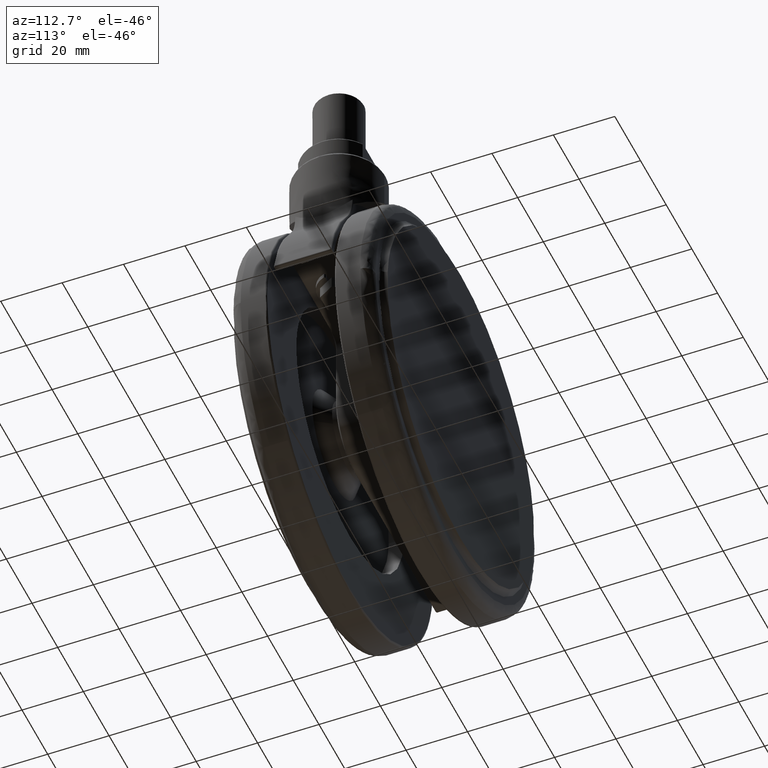
[diagram: clean part render]
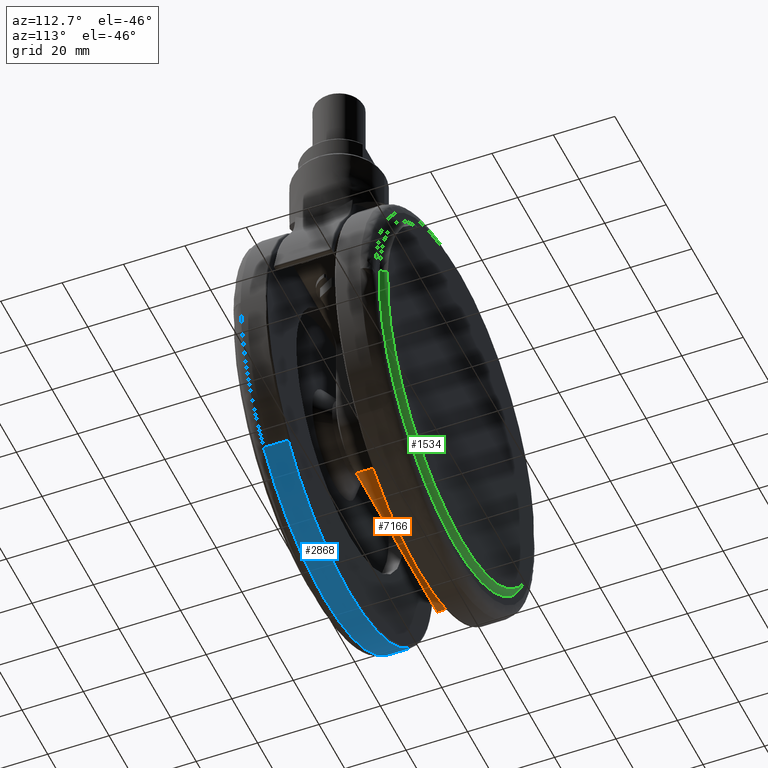
[diagram: same view with three faces highlighted in distinct colors, each labeled with its STEP entity id]
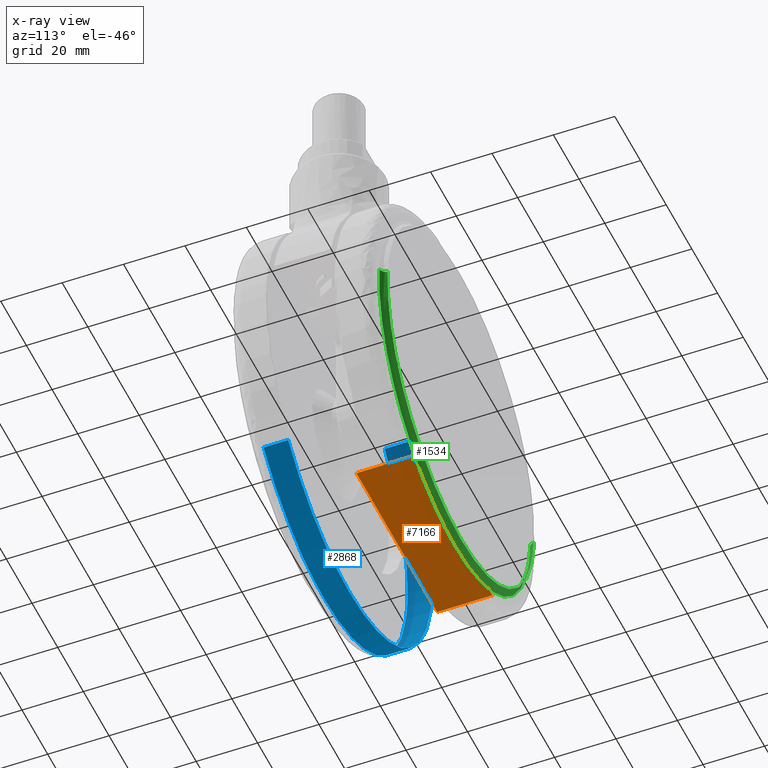
[diagram: x-ray of the same camera — body ghosted, the three highlighted faces saturated]
A machine part, auxiliary view with three faces highlighted in distinct colors.
The next image is the same camera in x-ray (body ghosted, the three faces saturated) — at least one of them is partly hidden behind the body in this view.
Their STEP definitions:

[orange] entity #7166 — the highlighted face is a freeform B-spline surface patch.
#7092=CARTESIAN_POINT('',(-35.0,9.0,-86.500000000000000));
#7093=VERTEX_POINT('',#7092);
#7094=CARTESIAN_POINT('',(-35.0,-8.999999999999789,-86.500000000000000));
#7095=VERTEX_POINT('',#7094);
#7096=CARTESIAN_POINT('',(-35.0,9.0,-86.500000000000000));
#7097=CARTESIAN_POINT('',(-35.0,-8.999999999999789,-86.500000000000000));
#7098=QUASI_UNIFORM_CURVE('',1,(#7096,#7097),.UNSPECIFIED.,.F.,.U.);
#7099=EDGE_CURVE('',#7093,#7095,#7098,.T.);
#7139=CARTESIAN_POINT('',(-31.860691300591970,-9.899099965112294,-86.500000000000000));
#7140=CARTESIAN_POINT('',(-100.988335835032800,-9.899099965112294,-86.500000000000000));
#7141=CARTESIAN_POINT('',(-31.860691300591970,9.899100447910119,-86.500000000000000));
#7142=CARTESIAN_POINT('',(-100.988335835032800,9.899100447910119,-86.500000000000000));
#7143=B_SPLINE_SURFACE_WITH_KNOTS('',1,1,((#7139,#7141),(#7140,#7142)),.UNSPECIFIED.,.F.,.F.,.U.,(2,2),(2,2),(0.0,69.127644534440805),(0.0,19.798200413022411),.UNSPECIFIED.);
#7144=CARTESIAN_POINT('',(-97.849025449882504,-8.999999999999799,-86.500000000000000));
#7145=VERTEX_POINT('',#7144);
#7146=CARTESIAN_POINT('',(-97.849025449882504,9.0,-86.500000000000000));
#7147=VERTEX_POINT('',#7146);
#7148=CARTESIAN_POINT('',(-97.849025449882504,-8.999999999999799,-86.500000000000000));
#7149=CARTESIAN_POINT('',(-97.849025449882504,9.0,-86.500000000000000));
#7150=QUASI_UNIFORM_CURVE('',1,(#7148,#7149),.UNSPECIFIED.,.F.,.U.);
#7151=EDGE_CURVE('',#7145,#7147,#7150,.T.);
#7152=ORIENTED_EDGE('',*,*,#7151,.T.);
#7153=CARTESIAN_POINT('',(-97.849025449882504,9.0,-86.500000000000000));
#7154=CARTESIAN_POINT('',(-35.0,9.0,-86.500000000000000));
#7155=QUASI_UNIFORM_CURVE('',1,(#7153,#7154),.UNSPECIFIED.,.F.,.U.);
#7156=EDGE_CURVE('',#7147,#7093,#7155,.T.);
#7157=ORIENTED_EDGE('',*,*,#7156,.T.);
#7158=ORIENTED_EDGE('',*,*,#7099,.T.);
#7159=CARTESIAN_POINT('',(-35.0,-8.999999999999789,-86.500000000000000));
#7160=CARTESIAN_POINT('',(-97.849025449882504,-8.999999999999799,-86.500000000000000));
#7161=QUASI_UNIFORM_CURVE('',1,(#7159,#7160),.UNSPECIFIED.,.F.,.U.);
#7162=EDGE_CURVE('',#7095,#7145,#7161,.T.);
#7163=ORIENTED_EDGE('',*,*,#7162,.T.);
#7164=EDGE_LOOP('',(#7152,#7157,#7158,#7163));
#7165=FACE_OUTER_BOUND('',#7164,.T.);
#7166=ADVANCED_FACE('',(#7165),#7143,.T.);

[blue] entity #2868 — the highlighted face is a freeform B-spline surface patch.
#2562=CARTESIAN_POINT('',(12.149334331554080,-11.499999998140650,-116.243047192735300));
#2563=VERTEX_POINT('',#2562);
#2579=CARTESIAN_POINT('',(-35.0,-11.500000000000000,-136.500000000000000));
#2580=VERTEX_POINT('',#2579);
#2581=CARTESIAN_POINT('',(12.149334331554087,-11.499999998140645,-116.243047192735280));
#2582=CARTESIAN_POINT('',(-7.073795926509572,-11.499999999232593,-136.499999999999970));
#2583=CARTESIAN_POINT('',(-35.0,-11.500000000000000,-136.500000000000000));
#2591=(BOUNDED_CURVE()B_SPLINE_CURVE(2,(#2581,#2582,#2583),.UNSPECIFIED.,.F.,.U.)B_SPLINE_CURVE_WITH_KNOTS((3,3),(0.371049525931352,0.500000000000000),.UNSPECIFIED.)CURVE()GEOMETRIC_REPRESENTATION_ITEM()RATIONAL_B_SPLINE_CURVE((0.853699661423327,0.848925122330052,1.0))REPRESENTATION_ITEM(''));
#2592=EDGE_CURVE('',#2563,#2580,#2591,.T.);
#2594=CARTESIAN_POINT('',(-99.994867873247927,-11.499999996382440,-72.316792592427134));
#2595=VERTEX_POINT('',#2594);
#2596=CARTESIAN_POINT('',(-35.0,-11.500000000000000,-136.500000000000000));
#2597=CARTESIAN_POINT('',(-99.188275443966333,-11.499999998191219,-136.500000000000000));
#2598=CARTESIAN_POINT('',(-99.994867873247927,-11.499999996382433,-72.316792592427134));
#2606=(BOUNDED_CURVE()B_SPLINE_CURVE(2,(#2596,#2597,#2598),.UNSPECIFIED.,.F.,.U.)B_SPLINE_CURVE_WITH_KNOTS((3,3),(0.500000000000000,0.747784295921703),.UNSPECIFIED.)CURVE()GEOMETRIC_REPRESENTATION_ITEM()RATIONAL_B_SPLINE_CURVE((1.0,0.709702639984269,0.994854295643955))REPRESENTATION_ITEM(''));
#2607=EDGE_CURVE('',#2580,#2595,#2606,.T.);
#2682=CARTESIAN_POINT('',(-82.149334331554087,-11.499999998140639,-26.756952807264732));
#2683=VERTEX_POINT('',#2682);
#2684=CARTESIAN_POINT('',(-99.994867873247927,-11.499999996382433,-72.316792592427134));
#2685=CARTESIAN_POINT('',(-100.000000000000010,-11.499999996393658,-71.908412419477457));
#2686=CARTESIAN_POINT('',(-100.0,-11.499999996405030,-71.500000000000014));
#2687=CARTESIAN_POINT('',(-100.0,-11.499999997126656,-45.567629693371082));
#2688=CARTESIAN_POINT('',(-82.149334331554073,-11.499999998140645,-26.756952807264724));
#2696=(BOUNDED_CURVE()B_SPLINE_CURVE(2,(#2684,#2685,#2686,#2687,#2688),.UNSPECIFIED.,.F.,.U.)B_SPLINE_CURVE_WITH_KNOTS((3,2,3),(0.747784295921703,0.750000000000000,0.871049525931352),.UNSPECIFIED.)CURVE()GEOMETRIC_REPRESENTATION_ITEM()RATIONAL_B_SPLINE_CURVE((0.994854295643955,0.997404141202278,1.0,0.858181658856495,0.853699661423327))REPRESENTATION_ITEM(''));
#2697=EDGE_CURVE('',#2595,#2683,#2696,.T.);
#2733=CARTESIAN_POINT('',(-82.149334334185141,-19.500000000176971,-26.756952810037280));
#2734=VERTEX_POINT('',#2733);
#2765=CARTESIAN_POINT('',(12.149334334185131,-19.500000000176971,-116.243047189962700));
#2766=VERTEX_POINT('',#2765);
#2782=CARTESIAN_POINT('',(12.149334334185131,-19.500000000176971,-116.243047189962700));
#2783=CARTESIAN_POINT('',(12.149334331554080,-11.499999998140650,-116.243047192735300));
#2784=QUASI_UNIFORM_CURVE('',1,(#2782,#2783),.UNSPECIFIED.,.F.,.U.);
#2785=EDGE_CURVE('',#2766,#2563,#2784,.T.);
#2790=CARTESIAN_POINT('',(-82.149334334185141,-19.500000000176971,-26.756952810037280));
#2791=CARTESIAN_POINT('',(-82.149334331554087,-11.499999998140639,-26.756952807264732));
#2792=QUASI_UNIFORM_CURVE('',1,(#2790,#2791),.UNSPECIFIED.,.F.,.U.);
#2793=EDGE_CURVE('',#2734,#2683,#2792,.T.);
#2798=CARTESIAN_POINT('',(12.149334115798689,-19.700000000443360,-116.243047420094000));
#2799=CARTESIAN_POINT('',(-32.593713304295314,-19.700000000443360,-163.392381535892750));
#2800=CARTESIAN_POINT('',(-79.743047420094001,-19.700000000443360,-118.649334115798690));
#2801=CARTESIAN_POINT('',(-126.892381535892680,-19.700000000443360,-73.906286695704694));
#2802=CARTESIAN_POINT('',(-82.149334115798695,-19.700000000443360,-26.756952579905999));
#2803=CARTESIAN_POINT('',(12.149334115798689,-11.294999996280909,-116.243047420094000));
#2804=CARTESIAN_POINT('',(-32.593713304295314,-11.294999996280913,-163.392381535892750));
#2805=CARTESIAN_POINT('',(-79.743047420094001,-11.294999996280909,-118.649334115798690));
#2806=CARTESIAN_POINT('',(-126.892381535892680,-11.294999996280913,-73.906286695704694));
#2807=CARTESIAN_POINT('',(-82.149334115798695,-11.294999996280909,-26.756952579905999));
#2815=(BOUNDED_SURFACE()B_SPLINE_SURFACE(2,1,((#2798,#2803),(#2799,#2804),(#2800,#2805),(#2801,#2806),(#2802,#2807)),.UNSPECIFIED.,.F.,.F.,.U.)B_SPLINE_SURFACE_WITH_KNOTS((3,2,3),(2,2),(0.0,107.695526217004700,215.391052434009400),(0.0,8.405000004162442),.UNSPECIFIED.)GEOMETRIC_REPRESENTATION_ITEM()RATIONAL_B_SPLINE_SURFACE(((1.0,1.0),(0.707106781186548,0.707106781186548),(1.0,1.0),(0.707106781186548,0.707106781186548),(1.0,1.0)))REPRESENTATION_ITEM('')SURFACE());
#2816=CARTESIAN_POINT('',(-99.994867873247927,-19.500000000344311,-72.316792592427120));
#2817=VERTEX_POINT('',#2816);
#2818=CARTESIAN_POINT('',(-99.994867873247927,-19.500000000344311,-72.316792592427120));
#2819=CARTESIAN_POINT('',(-100.000000000000010,-19.500000000343245,-71.908412419477443));
#2820=CARTESIAN_POINT('',(-100.0,-19.500000000342169,-71.500000000000000));
#2821=CARTESIAN_POINT('',(-100.0,-19.500000000273477,-45.567629695586383));
#2822=CARTESIAN_POINT('',(-82.149334334185127,-19.500000000176971,-26.756952810037284));
#2830=(BOUNDED_CURVE()B_SPLINE_CURVE(2,(#2818,#2819,#2820,#2821,#2822),.UNSPECIFIED.,.F.,.U.)B_SPLINE_CURVE_WITH_KNOTS((3,2,3),(0.747784295921703,0.750000000000000,0.871049525922478),.UNSPECIFIED.)CURVE()GEOMETRIC_REPRESENTATION_ITEM()RATIONAL_B_SPLINE_CURVE((0.994854295643955,0.997404141202278,1.0,0.858181658866892,0.853699661423984))REPRESENTATION_ITEM(''));
#2831=EDGE_CURVE('',#2817,#2734,#2830,.T.);
#2832=ORIENTED_EDGE('',*,*,#2831,.T.);
#2833=ORIENTED_EDGE('',*,*,#2793,.T.);
#2834=ORIENTED_EDGE('',*,*,#2697,.F.);
#2835=ORIENTED_EDGE('',*,*,#2607,.F.);
#2836=ORIENTED_EDGE('',*,*,#2592,.F.);
#2837=ORIENTED_EDGE('',*,*,#2785,.F.);
#2838=CARTESIAN_POINT('',(-35.0,-19.500000000000000,-136.500000000000000));
#2839=VERTEX_POINT('',#2838);
#2840=CARTESIAN_POINT('',(12.149334334185109,-19.500000000176968,-116.243047189962710));
#2841=CARTESIAN_POINT('',(-7.073795924245713,-19.500000000073044,-136.500000000000030));
#2842=CARTESIAN_POINT('',(-35.0,-19.500000000000000,-136.500000000000000));
#2850=(BOUNDED_CURVE()B_SPLINE_CURVE(2,(#2840,#2841,#2842),.UNSPECIFIED.,.F.,.U.)B_SPLINE_CURVE_WITH_KNOTS((3,3),(0.371049525922478,0.500000000000000),.UNSPECIFIED.)CURVE()GEOMETRIC_REPRESENTATION_ITEM()RATIONAL_B_SPLINE_CURVE((0.853699661423984,0.848925122319655,1.0))REPRESENTATION_ITEM(''));
#2851=EDGE_CURVE('',#2766,#2839,#2850,.T.);
#2852=ORIENTED_EDGE('',*,*,#2851,.T.);
#2853=CARTESIAN_POINT('',(-35.0,-19.500000000000000,-136.500000000000000));
#2854=CARTESIAN_POINT('',(-99.188275443966333,-19.500000000172157,-136.500000000000000));
#2855=CARTESIAN_POINT('',(-99.994867873247927,-19.500000000344311,-72.316792592427120));
#2863=(BOUNDED_CURVE()B_SPLINE_CURVE(2,(#2853,#2854,#2855),.UNSPECIFIED.,.F.,.U.)B_SPLINE_CURVE_WITH_KNOTS((3,3),(0.500000000000000,0.747784295921703),.UNSPECIFIED.)CURVE()GEOMETRIC_REPRESENTATION_ITEM()RATIONAL_B_SPLINE_CURVE((1.0,0.709702639984269,0.994854295643955))REPRESENTATION_ITEM(''));
#2864=EDGE_CURVE('',#2839,#2817,#2863,.T.);
#2865=ORIENTED_EDGE('',*,*,#2864,.T.);
#2866=EDGE_LOOP('',(#2832,#2833,#2834,#2835,#2836,#2837,#2852,#2865));
#2867=FACE_OUTER_BOUND('',#2866,.T.);
#2868=ADVANCED_FACE('',(#2867),#2815,.T.);

[green] entity #1534 — the highlighted face is a freeform B-spline surface patch.
#1146=CARTESIAN_POINT('',(21.838057314905349,24.999999999354170,-67.206372084848383));
#1147=VERTEX_POINT('',#1146);
#1161=CARTESIAN_POINT('',(-35.0,25.0,-128.500000000000000));
#1162=VERTEX_POINT('',#1161);
#1163=CARTESIAN_POINT('',(21.838057314905345,24.999999999354163,-67.206372084848383));
#1164=CARTESIAN_POINT('',(22.000000000053586,24.999999999365457,-69.350132047782736));
#1165=CARTESIAN_POINT('',(22.000000000052552,24.999999999377639,-71.499999999996021));
#1166=CARTESIAN_POINT('',(22.000000000025281,24.999999999700560,-128.499999999998100));
#1167=CARTESIAN_POINT('',(-35.0,25.0,-128.500000000000000));
#1175=(BOUNDED_CURVE()B_SPLINE_CURVE(2,(#1163,#1164,#1165,#1166,#1167),.UNSPECIFIED.,.F.,.U.)B_SPLINE_CURVE_WITH_KNOTS((3,2,3),(0.236870159262180,0.250000000000000,0.500000000000000),.UNSPECIFIED.)CURVE()GEOMETRIC_REPRESENTATION_ITEM()RATIONAL_B_SPLINE_CURVE((0.970850634526866,0.984617434735168,1.0,0.707106781186547,1.0))REPRESENTATION_ITEM(''));
#1176=EDGE_CURVE('',#1147,#1162,#1175,.T.);
#1178=CARTESIAN_POINT('',(-91.838057314905356,24.999999999354170,-75.793627915151632));
#1179=VERTEX_POINT('',#1178);
#1180=CARTESIAN_POINT('',(-35.0,25.0,-128.500000000000000));
#1181=CARTESIAN_POINT('',(-87.856542794842838,24.999999999677083,-128.500000000002050));
#1182=CARTESIAN_POINT('',(-91.838057314905356,24.999999999354170,-75.793627915151632));
#1190=(BOUNDED_CURVE()B_SPLINE_CURVE(2,(#1180,#1181,#1182),.UNSPECIFIED.,.F.,.U.)B_SPLINE_CURVE_WITH_KNOTS((3,3),(0.500000000000000,0.736870159262180),.UNSPECIFIED.)CURVE()GEOMETRIC_REPRESENTATION_ITEM()RATIONAL_B_SPLINE_CURVE((1.0,0.722489346451380,0.970850634526866))REPRESENTATION_ITEM(''));
#1191=EDGE_CURVE('',#1162,#1179,#1190,.T.);
#1382=CARTESIAN_POINT('',(23.649942014690438,23.018071807542540,-67.069519604198632));
#1383=VERTEX_POINT('',#1382);
#1397=CARTESIAN_POINT('',(23.649942014690435,23.018071807542537,-67.069519604198632));
#1398=CARTESIAN_POINT('',(21.981136974348622,23.307645337844242,-67.195573580196296));
#1399=CARTESIAN_POINT('',(21.838057314905342,24.999999999354170,-67.206372084848397));
#1407=(BOUNDED_CURVE()B_SPLINE_CURVE(2,(#1397,#1398,#1399),.UNSPECIFIED.,.F.,.U.)B_SPLINE_CURVE_WITH_KNOTS((3,3),(-1.689810131809040,-0.311560344111282),.UNSPECIFIED.)CURVE()GEOMETRIC_REPRESENTATION_ITEM()RATIONAL_B_SPLINE_CURVE((0.896853461037267,0.709765153952131,0.896481764525414))REPRESENTATION_ITEM(''));
#1408=EDGE_CURVE('',#1383,#1147,#1407,.T.);
#1412=CARTESIAN_POINT('',(-93.649942014690438,23.018071807542668,-75.930480395801368));
#1413=VERTEX_POINT('',#1412);
#1414=CARTESIAN_POINT('',(-93.649942014690438,23.018071807542668,-75.930480395801368));
#1415=CARTESIAN_POINT('',(-91.981136974348814,23.307645337844374,-75.804426419803733));
#1416=CARTESIAN_POINT('',(-91.838057314905356,24.999999999354170,-75.793627915151632));
#1424=(BOUNDED_CURVE()B_SPLINE_CURVE(2,(#1414,#1415,#1416),.UNSPECIFIED.,.F.,.U.)B_SPLINE_CURVE_WITH_KNOTS((3,3),(-1.689810131809055,-0.311560344111394),.UNSPECIFIED.)CURVE()GEOMETRIC_REPRESENTATION_ITEM()RATIONAL_B_SPLINE_CURVE((0.896853461037271,0.709765153952145,0.896481764525384))REPRESENTATION_ITEM(''));
#1425=EDGE_CURVE('',#1413,#1179,#1424,.T.);
#1460=CARTESIAN_POINT('',(-93.781082777842173,22.999385752556481,-75.940406829814762));
#1461=CARTESIAN_POINT('',(-89.340675948027382,22.999385752556474,-134.721489607656960));
#1462=CARTESIAN_POINT('',(-30.559593170185238,22.999385752556361,-130.281082777842190));
#1463=CARTESIAN_POINT('',(28.221489607656917,22.999385752556240,-125.840675948027410));
#1464=CARTESIAN_POINT('',(23.781082777842176,22.999385752556254,-67.059593170185224));
#1465=CARTESIAN_POINT('',(-91.877151664042174,23.212088152841481,-75.796581157988257));
#1466=CARTESIAN_POINT('',(-87.580570506053931,23.212088152841481,-132.673732822030420));
#1467=CARTESIAN_POINT('',(-30.703418842011768,23.212088152841378,-128.377151664042170));
#1468=CARTESIAN_POINT('',(26.173732822030402,23.212088152841254,-124.080570506053970));
#1469=CARTESIAN_POINT('',(21.877151664042174,23.212088152841265,-67.203418842011772));
#1470=CARTESIAN_POINT('',(-91.830855360416820,25.132693849568621,-75.793083869182070));
#1471=CARTESIAN_POINT('',(-87.537771491234750,25.132693849568614,-132.623939229598900));
#1472=CARTESIAN_POINT('',(-30.706916130817941,25.132693849568501,-128.330855360416820));
#1473=CARTESIAN_POINT('',(26.123939229598868,25.132693849568401,-124.037771491234760));
#1474=CARTESIAN_POINT('',(21.830855360416816,25.132693849568405,-67.206916130817945));
#1482=(BOUNDED_SURFACE()B_SPLINE_SURFACE(2,2,((#1460,#1465,#1470),(#1461,#1466,#1471),(#1462,#1467,#1472),(#1463,#1468,#1473),(#1464,#1469,#1474)),.UNSPECIFIED.,.F.,.F.,.U.)B_SPLINE_SURFACE_WITH_KNOTS((3,2,3),(3,3),(0.0,97.669174656894910,195.338349313789790),(0.0,3.301510569757944),.UNSPECIFIED.)GEOMETRIC_REPRESENTATION_ITEM()RATIONAL_B_SPLINE_SURFACE(((0.916476833075790,0.690160635493702,0.916067430440628),(0.648046983468263,0.488017265465614,0.647757492088704),(0.916476833075790,0.690160635493702,0.916067430440628),(0.648046983468263,0.488017265465614,0.647757492088704),(0.916476833075790,0.690160635493702,0.916067430440628)))REPRESENTATION_ITEM('')SURFACE());
#1483=CARTESIAN_POINT('',(6.850429039199890,23.018071161628601,-112.827797947949410));
#1484=VERTEX_POINT('',#1483);
#1485=CARTESIAN_POINT('',(23.649942014690442,23.018071807542537,-67.069519604198632));
#1486=CARTESIAN_POINT('',(23.817045779675638,23.018071780789203,-69.281608623239677));
#1487=CARTESIAN_POINT('',(23.817045938704091,23.018071753194342,-71.500000257540137));
#1488=CARTESIAN_POINT('',(23.817047669687579,23.018071452831361,-95.646617984801409));
#1489=CARTESIAN_POINT('',(6.850429039199890,23.018071161628605,-112.827797947949390));
#1497=(BOUNDED_CURVE()B_SPLINE_CURVE(2,(#1485,#1486,#1487,#1488,#1489),.UNSPECIFIED.,.F.,.U.)B_SPLINE_CURVE_WITH_KNOTS((3,2,3),(0.236870217087625,0.250000000000000,0.374051937432029),.UNSPECIFIED.)CURVE()GEOMETRIC_REPRESENTATION_ITEM()RATIONAL_B_SPLINE_CURVE((0.970850755788285,0.984617502481891,1.0,0.854664114981952,0.853561814883004))REPRESENTATION_ITEM(''));
#1498=EDGE_CURVE('',#1383,#1484,#1497,.T.);
#1499=ORIENTED_EDGE('',*,*,#1498,.T.);
#1500=CARTESIAN_POINT('',(-35.0,23.018071161631202,-130.317049347871010));
#1501=VERTEX_POINT('',#1500);
#1502=CARTESIAN_POINT('',(6.850429039199890,23.018071161628605,-112.827797947949390));
#1503=CARTESIAN_POINT('',(-10.420415363386454,23.018071161629898,-130.317049347876240));
#1504=CARTESIAN_POINT('',(-35.0,23.018071161631202,-130.317049347871010));
#1512=(BOUNDED_CURVE()B_SPLINE_CURVE(2,(#1502,#1503,#1504),.UNSPECIFIED.,.F.,.U.)B_SPLINE_CURVE_WITH_KNOTS((3,3),(0.374051937432029,0.500000000000000),.UNSPECIFIED.)CURVE()GEOMETRIC_REPRESENTATION_ITEM()RATIONAL_B_SPLINE_CURVE((0.853561814883004,0.852442666204595,1.0))REPRESENTATION_ITEM(''));
#1513=EDGE_CURVE('',#1484,#1501,#1512,.T.);
#1514=ORIENTED_EDGE('',*,*,#1513,.T.);
#1515=CARTESIAN_POINT('',(-35.0,23.018071161631202,-130.317049347871010));
#1516=CARTESIAN_POINT('',(-89.541523338456713,23.018071484587285,-130.317049207272590));
#1517=CARTESIAN_POINT('',(-93.649942014690438,23.018071807542668,-75.930480395801368));
#1525=(BOUNDED_CURVE()B_SPLINE_CURVE(2,(#1515,#1516,#1517),.UNSPECIFIED.,.F.,.U.)B_SPLINE_CURVE_WITH_KNOTS((3,3),(0.500000000000000,0.736870217087625),.UNSPECIFIED.)CURVE()GEOMETRIC_REPRESENTATION_ITEM()RATIONAL_B_SPLINE_CURVE((1.0,0.722489278704657,0.970850755788284))REPRESENTATION_ITEM(''));
#1526=EDGE_CURVE('',#1501,#1413,#1525,.T.);
#1527=ORIENTED_EDGE('',*,*,#1526,.T.);
#1528=ORIENTED_EDGE('',*,*,#1425,.T.);
#1529=ORIENTED_EDGE('',*,*,#1191,.F.);
#1530=ORIENTED_EDGE('',*,*,#1176,.F.);
#1531=ORIENTED_EDGE('',*,*,#1408,.F.);
#1532=EDGE_LOOP('',(#1499,#1514,#1527,#1528,#1529,#1530,#1531));
#1533=FACE_OUTER_BOUND('',#1532,.T.);
#1534=ADVANCED_FACE('',(#1533),#1482,.F.);